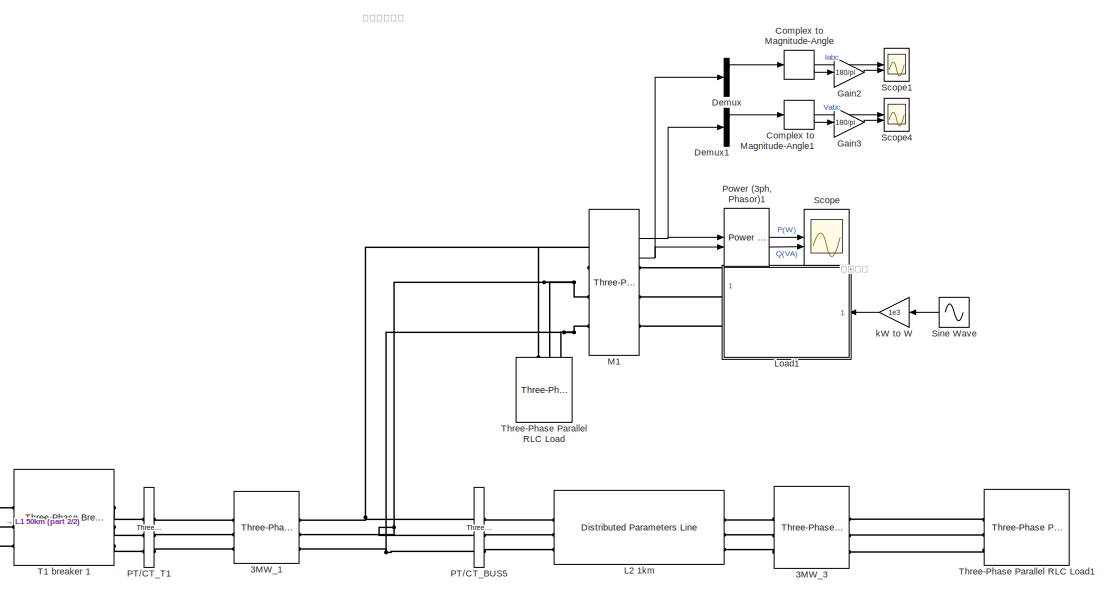
[diagram: root canvas - part 1/2, right side, full height]
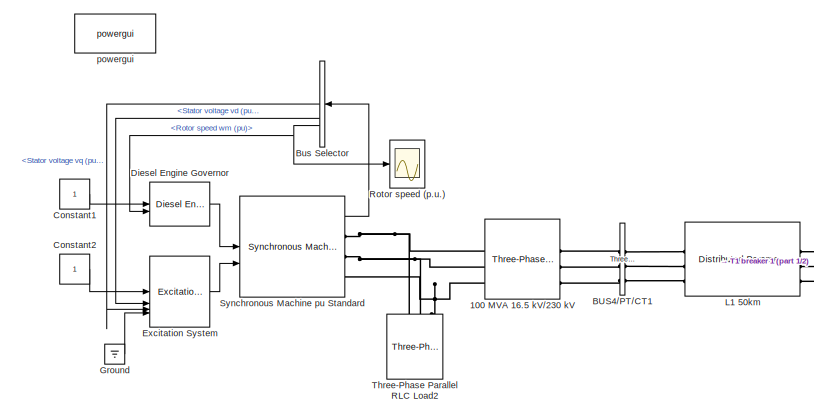
[diagram: root canvas - part 2/2, bottom left region]
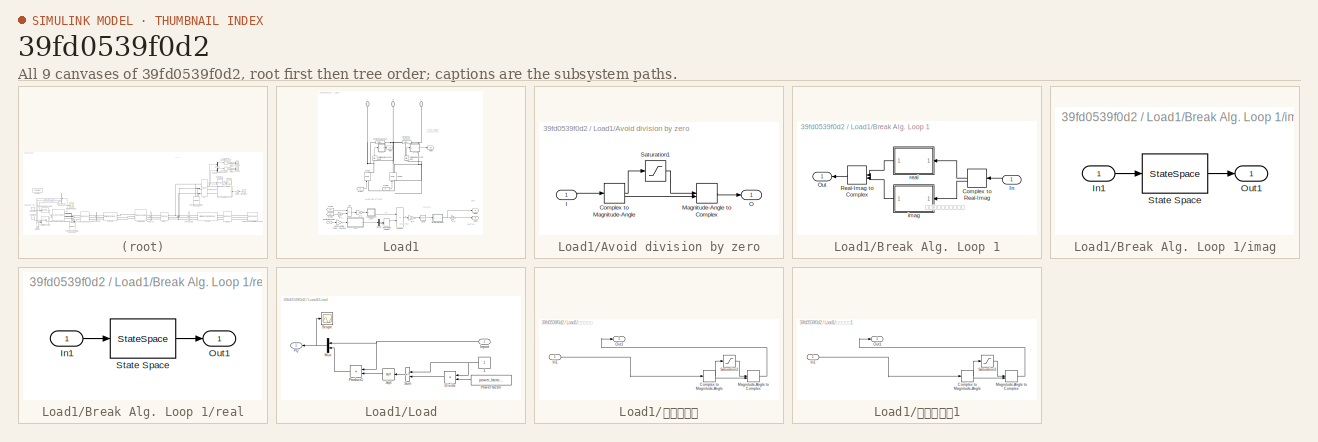
[diagram: thumbnail index - all 9 canvases of the model, root first then tree order]
MODEL slx_39fd0539f0d2
KIND model
CONFIG AbsTol = auto
CONFIG EnableMultiTasking = off
CONFIG FixedStep = auto
CONFIG InitFcn = to = 0.1;\nV_G = 16.5e3;\nV1 = 230e3;\nV2 = 10.5e3;\nV3 = 380;\n\nP_G = 10e6;\nS_T1 = 5e6;\nS_T2 = S_T1;
CONFIG MaxStep = auto
CONFIG MinStep = auto
CONFIG RelTol = 1e-3
CONFIG SampleTimeConstraint = Unconstrained
CONFIG SolverName = daessc
CONFIG StartTime = 0.0
CONFIG StopTime = 60*60*24
BLOCK [Reference] 100 MVA 16.5 kV//230 kV  REF=spsThreePhaseTransformerTwoWindingsLib/Three-Phase
Transformer
(Two Windings)
  AttributesFormatString = \n
  SourceBlock = spsThreePhaseTransformerTwoWindingsLib/Three-Phase\nTransformer\n(Two Windings)
  SourceType = Three-Phase Transformer (Two Windings)
BLOCK [Reference] 3MW_1  REF=spsThreePhaseTransformerTwoWindingsLib/Three-Phase
Transformer
(Two Windings)
  LibrarySourceBlock = sps_lib/Power Grid Elements/Three-Phase\nTransformer\n(Two Windings)
  SourceBlock = spsThreePhaseTransformerTwoWindingsLib/Three-Phase\nTransformer\n(Two Windings)
  SourceType = Three-Phase Transformer (Two Windings)
BLOCK [Reference] 3MW_3  REF=spsThreePhaseTransformerTwoWindingsLib/Three-Phase
Transformer
(Two Windings)
  LibrarySourceBlock = sps_lib/Power Grid Elements/Three-Phase\nTransformer\n(Two Windings)
  SourceBlock = spsThreePhaseTransformerTwoWindingsLib/Three-Phase\nTransformer\n(Two Windings)
  SourceType = Three-Phase Transformer (Two Windings)
BLOCK [Reference] BUS4//PT//CT1  REF=spsThreePhaseVIMeasurementLib/Three-Phase
V-I Measurement
  LibrarySourceBlock = sps_lib/Sensors and Measurements/Three-Phase\nV-I Measurement
  SourceBlock = spsThreePhaseVIMeasurementLib/Three-Phase\nV-I Measurement
  SourceType = Three-Phase VI Measurement
BLOCK [BusSelector] Bus Selector
  NameLocation = top
  OutputSignals = dq0 components.Stator voltage  vq (pu),dq0 components.Stator voltage  vd (pu),Mechanical.Rotor speed  wm  (pu)
BLOCK [ComplexToMagnitudeAngle] Complex to Magnitude-Angle
BLOCK [ComplexToMagnitudeAngle] Complex to Magnitude-Angle1
BLOCK [Constant] Constant1
BLOCK [Constant] Constant2
BLOCK [Demux] Demux
  Outputs = 3
BLOCK [Demux] Demux1
  Outputs = 3
BLOCK [Reference] Diesel Engine Governor  REF=spsDieselMotorModel/Diesel Engine Governor
  SourceBlock = spsDieselMotorModel/Diesel Engine Governor
  SourceType = Diesel Engine & Governor
BLOCK [Reference] Excitation System  REF=spsExcitationSystemLib/Excitation System
  SourceBlock = spsExcitationSystemLib/Excitation System
  SourceType = Excitation System
BLOCK [Gain] Gain2
  Gain = 180/pi
BLOCK [Gain] Gain3
  Gain = 180/pi
BLOCK [Ground] Ground
BLOCK [Reference] L1 50km  REF=spsDistributedParametersLineLib/Distributed Parameters Line
  AttributesFormatString = \n
  SourceBlock = spsDistributedParametersLineLib/Distributed Parameters Line
  SourceType = Distributed Parameters Line
BLOCK [Reference] L2 1km  REF=spsDistributedParametersLineLib/Distributed Parameters Line
  AttributesFormatString = \n
  SourceBlock = spsDistributedParametersLineLib/Distributed Parameters Line
  SourceType = Distributed Parameters Line
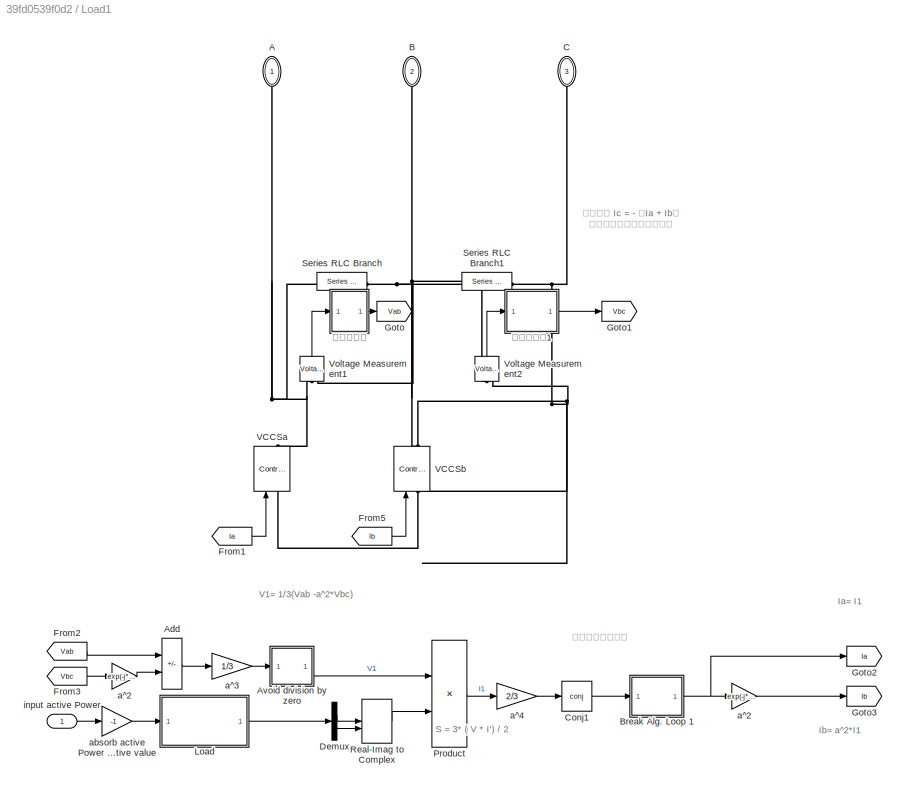
BLOCK [SubSystem] Load1
BLOCK [PMIOPort] Load1/A
  NameLocation = left
  Side = Right
  Tag = PMCPort
BLOCK [Sum] Load1/Add
  IconShape = rectangular
  Inputs = +-
BLOCK [SubSystem] Load1/Avoid division by zero
BLOCK [ComplexToMagnitudeAngle] Load1/Avoid division by zero/Complex to Magnitude-Angle
BLOCK [Inport] Load1/Avoid division by zero/I
BLOCK [MagnitudeAngleToComplex] Load1/Avoid division by zero/Magnitude-Angle to Complex
BLOCK [Outport] Load1/Avoid division by zero/O
  VectorParamsAs1DForOutWhenUnconnected = off
BLOCK [Saturate] Load1/Avoid division by zero/Saturation1
  LowerLimit = 1e-6
  UpperLimit = inf
BLOCK [PMIOPort] Load1/B
  NameLocation = right
  Port = 2
  Side = Right
  Tag = PMCPort
BLOCK [SubSystem] Load1/Break Alg. Loop 1
BLOCK [ComplexToRealImag] Load1/Break Alg. Loop 1/Complex to Real-Imag
BLOCK [Inport] Load1/Break Alg. Loop 1/In
BLOCK [Outport] Load1/Break Alg. Loop 1/Out
  VectorParamsAs1DForOutWhenUnconnected = off
BLOCK [RealImagToComplex] Load1/Break Alg. Loop 1/Real-Imag to Complex
BLOCK [SubSystem] Load1/Break Alg. Loop 1/imag
BLOCK [Inport] Load1/Break Alg. Loop 1/imag/In1
BLOCK [Outport] Load1/Break Alg. Loop 1/imag/Out1
  InitialOutput = 0
  VectorParamsAs1DForOutWhenUnconnected = off
BLOCK [StateSpace] Load1/Break Alg. Loop 1/imag/State Space
  A = A
  B = B
  C = C
  D = Dd
  InitialCondition = X0
BLOCK [SubSystem] Load1/Break Alg. Loop 1/real
BLOCK [Inport] Load1/Break Alg. Loop 1/real/In1
BLOCK [Outport] Load1/Break Alg. Loop 1/real/Out1
  InitialOutput = 0
  VectorParamsAs1DForOutWhenUnconnected = off
BLOCK [StateSpace] Load1/Break Alg. Loop 1/real/State Space
  A = A
  B = B
  C = C
  D = Dd
  InitialCondition = X0
BLOCK [PMIOPort] Load1/C
  NameLocation = left
  Port = 3
  Side = Right
  Tag = PMCPort
BLOCK [Math] Load1/Conj1
  Operator = conj
  SignedPower = on
BLOCK [Demux] Load1/Demux
  Outputs = 2
BLOCK [From] Load1/From1
  GotoTag = Ia
BLOCK [From] Load1/From2
  GotoTag = Vab
BLOCK [From] Load1/From3
  GotoTag = Vbc
BLOCK [From] Load1/From5
  GotoTag = Ib
BLOCK [Goto] Load1/Goto
  GotoTag = Vab
BLOCK [Goto] Load1/Goto1
  GotoTag = Vbc
BLOCK [Goto] Load1/Goto2
  GotoTag = Ia
BLOCK [Goto] Load1/Goto3
  GotoTag = Ib
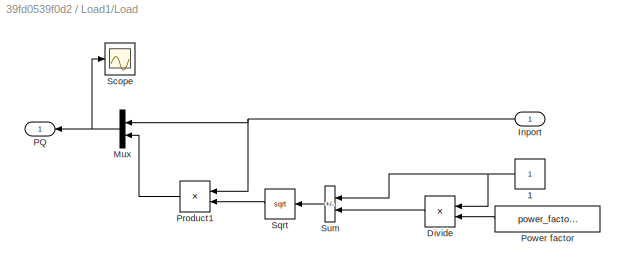
BLOCK [SubSystem] Load1/Load
BLOCK [Constant] Load1/Load/1
  NameLocation = top
BLOCK [Product] Load1/Load/Divide
  Inputs = */
BLOCK [Inport] Load1/Load/Inport
  NameLocation = top
BLOCK [Mux] Load1/Load/Mux
  DisplayOption = bar
  Inputs = 2
  NameLocation = top
BLOCK [Outport] Load1/Load/PQ
  VectorParamsAs1DForOutWhenUnconnected = off
BLOCK [Constant] Load1/Load/Power factor
  Value = power_factor^2
BLOCK [Product] Load1/Load/Product1
  NameLocation = top
BLOCK [Scope] Load1/Load/Scope
  Floating = off
  NumInputPorts = 1
  ScopeSpecificationString = Simulink.scopes.TimeScopeBlockCfg('CurrentConfiguration', extmgr.ConfigurationSet(extmgr.Configuration('Core','General UI',true),extmgr.Configuration('Core','Source UI',true),extmgr.Configuration('Sources','WiredSimulink',true,'DataLoggingVariableName','ScopeData4','DataLoggingSaveFormat','StructureWithTime','DataLoggingDecimation','20','DataLoggingDecimateData',true),extmgr.Configuration('Visuals...<+1746ch>
BLOCK [Sqrt] Load1/Load/Sqrt
  NameLocation = top
BLOCK [Sum] Load1/Load/Sum
  IconShape = rectangular
  Inputs = -+
  NameLocation = top
BLOCK [Product] Load1/Product
  InputSameDT = on
  Inputs = /*
  OutDataTypeStr = Inherit: Same as first input
  SaturateOnIntegerOverflow = on
BLOCK [RealImagToComplex] Load1/Real-Imag to Complex
BLOCK [Reference] Load1/Series RLC Branch  REF=spsSeriesRLCBranchLib/Series RLC Branch
  SourceBlock = spsSeriesRLCBranchLib/Series RLC Branch
  SourceType = Series RLC Branch
BLOCK [Reference] Load1/Series RLC Branch1  REF=spsSeriesRLCBranchLib/Series RLC Branch
  SourceBlock = spsSeriesRLCBranchLib/Series RLC Branch
  SourceType = Series RLC Branch
BLOCK [Reference] Load1/VCCSa  REF=spsControlledCurrentSourceLib/Controlled Current Source
  NameLocation = right
  SourceBlock = spsControlledCurrentSourceLib/Controlled Current Source
  SourceType = Controlled Current Source
BLOCK [Reference] Load1/VCCSb  REF=spsControlledCurrentSourceLib/Controlled Current Source
  NameLocation = right
  SourceBlock = spsControlledCurrentSourceLib/Controlled Current Source
  SourceType = Controlled Current Source
BLOCK [Reference] Load1/Voltage Measurement1  REF=spsVoltageMeasurementLib/Voltage Measurement
  NameLocation = left
  SourceBlock = spsVoltageMeasurementLib/Voltage Measurement
  SourceType = Voltage Measurement
BLOCK [Reference] Load1/Voltage Measurement2  REF=spsVoltageMeasurementLib/Voltage Measurement
  NameLocation = left
  SourceBlock = spsVoltageMeasurementLib/Voltage Measurement
  SourceType = Voltage Measurement
BLOCK [Gain] Load1/a^2
  Gain = exp(-j*2*pi/3)
  OutDataTypeStr = Inherit: Same as input
  ParamDataTypeStr = Inherit: Same as input
  SaturateOnIntegerOverflow = on
BLOCK [Gain] Load1/a^2 
  Gain = exp(-j*2*pi/3)
  OutDataTypeStr = Inherit: Same as input
  ParamDataTypeStr = Inherit: Same as input
  SaturateOnIntegerOverflow = on
BLOCK [Gain] Load1/a^3
  Gain = 1/3
  OutDataTypeStr = Inherit: Same as input
  ParamDataTypeStr = Inherit: Same as input
  SaturateOnIntegerOverflow = on
BLOCK [Gain] Load1/a^4
  Gain = 2/3
  OutDataTypeStr = Inherit: Same as input
  ParamDataTypeStr = Inherit: Same as input
  SaturateOnIntegerOverflow = on
BLOCK [Gain] Load1/absorb active Power gain has a nagetive value
  Gain = -1
BLOCK [Inport] Load1/input active Power
BLOCK [SubSystem] Load1/电压限幅器
BLOCK [ComplexToMagnitudeAngle] Load1/电压限幅器/Complex to Magnitude-Angle
BLOCK [Inport] Load1/电压限幅器/In1
BLOCK [MagnitudeAngleToComplex] Load1/电压限幅器/Magnitude-Angle to Complex
BLOCK [Outport] Load1/电压限幅器/Out1
BLOCK [Saturate] Load1/电压限幅器/Saturation2
  LowerLimit = -50e3
  UpperLimit = 50e3
BLOCK [SubSystem] Load1/电压限幅器1
BLOCK [ComplexToMagnitudeAngle] Load1/电压限幅器1/Complex to Magnitude-Angle
BLOCK [Inport] Load1/电压限幅器1/In1
BLOCK [MagnitudeAngleToComplex] Load1/电压限幅器1/Magnitude-Angle to Complex
BLOCK [Outport] Load1/电压限幅器1/Out1
BLOCK [Saturate] Load1/电压限幅器1/Saturation2
  LowerLimit = -50e3
  UpperLimit = 50e3
BLOCK [Reference] M1  REF=spsThreePhaseVIMeasurementLib/Three-Phase
V-I Measurement
  NameLocation = top
  SourceBlock = spsThreePhaseVIMeasurementLib/Three-Phase\nV-I Measurement
  SourceType = Three-Phase VI Measurement
BLOCK [Reference] PT//CT_BUS5  REF=spsThreePhaseVIMeasurementLib/Three-Phase
V-I Measurement
  NameLocation = top
  SourceBlock = spsThreePhaseVIMeasurementLib/Three-Phase\nV-I Measurement
  SourceType = Three-Phase VI Measurement
BLOCK [Reference] PT//CT_T1  REF=spsThreePhaseVIMeasurementLib/Three-Phase
V-I Measurement
  NameLocation = top
  SourceBlock = spsThreePhaseVIMeasurementLib/Three-Phase\nV-I Measurement
  SourceType = Three-Phase VI Measurement
BLOCK [Reference] Power (3ph, Phasor)1  REF=spsPower3phPhasorLib/Power
(3ph, Phasor)
  SourceBlock = spsPower3phPhasorLib/Power\n(3ph, Phasor)
  SourceType = Power (3ph, Phasor)
BLOCK [Scope] Rotor speed (p.u.)
  Floating = off
  NumInputPorts = 1
  ScopeSpecificationString = Simulink.scopes.TimeScopeBlockCfg('CurrentConfiguration', extmgr.ConfigurationSet(extmgr.Configuration('Core','General UI',true),extmgr.Configuration('Core','Source UI',true),extmgr.Configuration('Sources','WiredSimulink',true,'DataLogging',true,'DataLoggingVariableName','ScopeData1','DataLoggingSaveFormat','Array','DataLoggingDecimation','1','DataLoggingDecimateData',true),extmgr.Configuration('V...<+1765ch>
BLOCK [Scope] Scope
  Floating = off
  NumInputPorts = 2
  ScopeSpecificationString = Simulink.scopes.TimeScopeBlockCfg('CurrentConfiguration', extmgr.ConfigurationSet(extmgr.Configuration('Core','General UI',true),extmgr.Configuration('Core','Source UI',true),extmgr.Configuration('Sources','WiredSimulink',true,'DataLoggingVariableName','ScopeData2'),extmgr.Configuration('Visuals','Time Domain',true,'SerializedDisplays',{struct('MinYLimReal','-5591.96238','MaxYLimReal','6296.52307'...<+2108ch>
BLOCK [Scope] Scope1
  Floating = off
  NumInputPorts = 2
  ScopeSpecificationString = Simulink.scopes.TimeScopeBlockCfg('CurrentConfiguration', extmgr.ConfigurationSet(extmgr.Configuration('Core','General UI',true),extmgr.Configuration('Core','Source UI',true),extmgr.Configuration('Sources','WiredSimulink',true,'DataLoggingVariableName','ScopeData3'),extmgr.Configuration('Visuals','Time Domain',true,'SerializedDisplays',{struct('MinYLimReal','-55.96363','MaxYLimReal','503.68251','Y...<+2106ch>
BLOCK [Scope] Scope4
  Floating = off
  NumInputPorts = 2
  ScopeSpecificationString = Simulink.scopes.TimeScopeBlockCfg('CurrentConfiguration', extmgr.ConfigurationSet(extmgr.Configuration('Core','General UI',true),extmgr.Configuration('Core','Source UI',true),extmgr.Configuration('Sources','WiredSimulink',true,'DataLoggingVariableName','ScopeData4'),extmgr.Configuration('Visuals','Time Domain',true,'SerializedDisplays',{struct('MinYLimReal','-620.04933','MaxYLimReal','10223.62444'...<+2112ch>
BLOCK [Sin] Sine Wave
  Amplitude = 5
  Frequency = 3600
  NameLocation = top
  SampleTime = 60
  SineType = Sample based
BLOCK [Reference] Synchronous Machine pu Standard  REF=spsSynchronousMachinepuStandardLib/Synchronous Machine
pu Standard
  SourceBlock = spsSynchronousMachinepuStandardLib/Synchronous Machine\npu Standard
  SourceType = Synchronous Machine
BLOCK [Reference] T1 breaker 1  REF=spsThreePhaseBreakerLib/Three-Phase Breaker
  LibrarySourceBlock = sps_lib/Power Grid Elements/Three-Phase Breaker
  SourceBlock = spsThreePhaseBreakerLib/Three-Phase Breaker
  SourceType = Three-Phase Breaker
BLOCK [Reference] Three-Phase Parallel RLC Load  REF=spsThreePhaseParallelRLCLoadLib/Three-Phase
Parallel RLC Load
  AttributesFormatString = \n
  LibrarySourceBlock = sps_lib/Passives/Three-Phase\nParallel RLC Load
  SourceBlock = spsThreePhaseParallelRLCLoadLib/Three-Phase\nParallel RLC Load
  SourceType = Three-Phase Parallel RLC Load
BLOCK [Reference] Three-Phase Parallel RLC Load1  REF=spsThreePhaseParallelRLCLoadLib/Three-Phase
Parallel RLC Load
  AttributesFormatString = \n
  LibrarySourceBlock = sps_lib/Passives/Three-Phase\nParallel RLC Load
  NameLocation = right
  SourceBlock = spsThreePhaseParallelRLCLoadLib/Three-Phase\nParallel RLC Load
  SourceType = Three-Phase Parallel RLC Load
BLOCK [Reference] Three-Phase Parallel RLC Load2  REF=spsThreePhaseParallelRLCLoadLib/Three-Phase
Parallel RLC Load
  AttributesFormatString = \n
  NameLocation = left
  SourceBlock = spsThreePhaseParallelRLCLoadLib/Three-Phase\nParallel RLC Load
  SourceType = Three-Phase Parallel RLC Load
BLOCK [Gain] kW to W
  Gain = 1e3
  NameLocation = top
BLOCK [Reference] powergui  REF=sps_lib/powergui
  Priority = 1
  SourceBlock = sps_lib/powergui
  SourceType = PSB option menu block
ANNOTATION (root): 功率指令
ANNOTATION (root): 可控功率负荷
ANNOTATION Load1: Ia= I1
ANNOTATION Load1: Ib= a^2*I1
ANNOTATION Load1: S = 3* ( V * I') / 2
ANNOTATION Load1: V1= 1/3(Vab -a^2*Vbc)
ANNOTATION Load1: 三相三线 Ic = - （Ia + Ib） 注：三相四线不可用该模型
ANNOTATION Load1: 电流动态特性模拟
ANNOTATION Load1/Break Alg. Loop 1: 模拟电网电流动态行为
LINE Bus Selector:1 -> Excitation System:3
LINE Bus Selector:2 -> Excitation System:2
NET Bus Selector:3 -> Diesel Engine Governor:2, Rotor speed (p.u.):1
LINE Complex to Magnitude-Angle1:1 -> Scope4:1
LINE Complex to Magnitude-Angle1:2 -> Gain3:1
LINE Complex to Magnitude-Angle:1 -> Scope1:1
LINE Complex to Magnitude-Angle:2 -> Gain2:1
LINE Constant1:1 -> Diesel Engine Governor:1
LINE Constant2:1 -> Excitation System:1
LINE Demux1:1 -> Complex to Magnitude-Angle1:1
LINE Demux:1 -> Complex to Magnitude-Angle:1
LINE Diesel Engine Governor:1 -> Synchronous Machine pu Standard:1
LINE Excitation System:1 -> Synchronous Machine pu Standard:2
LINE Gain2:1 -> Scope1:2
LINE Gain3:1 -> Scope4:2
LINE Ground:1 -> Excitation System:4
LINE Load1/Add:1 -> Load1/a^3:1
LINE Load1/Avoid division by zero/Complex to Magnitude-Angle:1 -> Load1/Avoid division by zero/Saturation1:1
LINE Load1/Avoid division by zero/Complex to Magnitude-Angle:2 -> Load1/Avoid division by zero/Magnitude-Angle to Complex:2
LINE Load1/Avoid division by zero/I:1 -> Load1/Avoid division by zero/Complex to Magnitude-Angle:1
LINE Load1/Avoid division by zero/Magnitude-Angle to Complex:1 -> Load1/Avoid division by zero/O:1
LINE Load1/Avoid division by zero/Saturation1:1 -> Load1/Avoid division by zero/Magnitude-Angle to Complex:1
LINE Load1/Avoid division by zero:1 -> Load1/Product:1
LINE Load1/Break Alg. Loop 1/Complex to Real-Imag:1 -> Load1/Break Alg. Loop 1/real:1
LINE Load1/Break Alg. Loop 1/Complex to Real-Imag:2 -> Load1/Break Alg. Loop 1/imag:1
LINE Load1/Break Alg. Loop 1/In:1 -> Load1/Break Alg. Loop 1/Complex to Real-Imag:1
LINE Load1/Break Alg. Loop 1/Real-Imag to Complex:1 -> Load1/Break Alg. Loop 1/Out:1
LINE Load1/Break Alg. Loop 1/imag/In1:1 -> Load1/Break Alg. Loop 1/imag/State Space:1
LINE Load1/Break Alg. Loop 1/imag/State Space:1 -> Load1/Break Alg. Loop 1/imag/Out1:1
LINE Load1/Break Alg. Loop 1/imag:1 -> Load1/Break Alg. Loop 1/Real-Imag to Complex:2
LINE Load1/Break Alg. Loop 1/real/In1:1 -> Load1/Break Alg. Loop 1/real/State Space:1
LINE Load1/Break Alg. Loop 1/real/State Space:1 -> Load1/Break Alg. Loop 1/real/Out1:1
LINE Load1/Break Alg. Loop 1/real:1 -> Load1/Break Alg. Loop 1/Real-Imag to Complex:1
NET Load1/Break Alg. Loop 1:1 -> Load1/Goto2:1, Load1/a^2:1
LINE Load1/Conj1:1 -> Load1/Break Alg. Loop 1:1
LINE Load1/Demux:1 -> Load1/Real-Imag to Complex:1
LINE Load1/Demux:2 -> Load1/Real-Imag to Complex:2
LINE Load1/From1:1 -> Load1/VCCSa:1
LINE Load1/From2:1 -> Load1/Add:1
LINE Load1/From3:1 -> Load1/a^2 :1
LINE Load1/From5:1 -> Load1/VCCSb:1
NET Load1/Load/1:1 -> Load1/Load/Divide:1, Load1/Load/Sum:1
LINE Load1/Load/Divide:1 -> Load1/Load/Sum:2
NET Load1/Load/Inport:1 -> Load1/Load/Mux:1, Load1/Load/Product1:1
NET Load1/Load/Mux:1 -> Load1/Load/PQ:1, Load1/Load/Scope:1
LINE Load1/Load/Power factor:1 -> Load1/Load/Divide:2
LINE Load1/Load/Product1:1 -> Load1/Load/Mux:2
LINE Load1/Load/Sqrt:1 -> Load1/Load/Product1:2
LINE Load1/Load/Sum:1 -> Load1/Load/Sqrt:1
LINE Load1/Load:1 -> Load1/Demux:1
LINE Load1/Product:1 -> Load1/a^4:1
LINE Load1/Real-Imag to Complex:1 -> Load1/Product:2
LINE Load1/Voltage Measurement1:1 -> Load1/电压限幅器:1
LINE Load1/Voltage Measurement2:1 -> Load1/电压限幅器1:1
LINE Load1/a^2 :1 -> Load1/Add:2
LINE Load1/a^2:1 -> Load1/Goto3:1
LINE Load1/a^3:1 -> Load1/Avoid division by zero:1
LINE Load1/a^4:1 -> Load1/Conj1:1
LINE Load1/absorb active Power gain has a nagetive value:1 -> Load1/Load:1
LINE Load1/input active Power:1 -> Load1/absorb active Power gain has a nagetive value:1
LINE Load1/电压限幅器/Complex to Magnitude-Angle:1 -> Load1/电压限幅器/Saturation2:1
LINE Load1/电压限幅器/Complex to Magnitude-Angle:2 -> Load1/电压限幅器/Magnitude-Angle to Complex:2
LINE Load1/电压限幅器/In1:1 -> Load1/电压限幅器/Complex to Magnitude-Angle:1
LINE Load1/电压限幅器/Magnitude-Angle to Complex:1 -> Load1/电压限幅器/Out1:1
LINE Load1/电压限幅器/Saturation2:1 -> Load1/电压限幅器/Magnitude-Angle to Complex:1
LINE Load1/电压限幅器1/Complex to Magnitude-Angle:1 -> Load1/电压限幅器1/Saturation2:1
LINE Load1/电压限幅器1/Complex to Magnitude-Angle:2 -> Load1/电压限幅器1/Magnitude-Angle to Complex:2
LINE Load1/电压限幅器1/In1:1 -> Load1/电压限幅器1/Complex to Magnitude-Angle:1
LINE Load1/电压限幅器1/Magnitude-Angle to Complex:1 -> Load1/电压限幅器1/Out1:1
LINE Load1/电压限幅器1/Saturation2:1 -> Load1/电压限幅器1/Magnitude-Angle to Complex:1
LINE Load1/电压限幅器1:1 -> Load1/Goto1:1
LINE Load1/电压限幅器:1 -> Load1/Goto:1
NET M1:1 -> Demux1:1, Power (3ph, Phasor)1:1
NET M1:2 -> Demux:1, Power (3ph, Phasor)1:2
LINE Power (3ph, Phasor)1:1 -> Scope:1
LINE Power (3ph, Phasor)1:2 -> Scope:2
LINE Sine Wave:1 -> kW to W:1
LINE Synchronous Machine pu Standard:1 -> Bus Selector:1
LINE kW to W:1 -> Load1:1
PNET net1: 100 MVA 16.5 kV//230 kV:LConn1 -- Synchronous Machine pu Standard:RConn1 -- Three-Phase Parallel RLC Load2:LConn1
PNET net2: 100 MVA 16.5 kV//230 kV:LConn2 -- Synchronous Machine pu Standard:RConn2 -- Three-Phase Parallel RLC Load2:LConn2
PNET net3: 100 MVA 16.5 kV//230 kV:LConn3 -- Synchronous Machine pu Standard:RConn3 -- Three-Phase Parallel RLC Load2:LConn3
PLINE 100 MVA 16.5 kV//230 kV:RConn1 -- BUS4//PT//CT1:LConn1
PLINE 100 MVA 16.5 kV//230 kV:RConn2 -- BUS4//PT//CT1:LConn2
PLINE 100 MVA 16.5 kV//230 kV:RConn3 -- BUS4//PT//CT1:LConn3
PLINE 3MW_1:LConn1 -- PT//CT_T1:RConn1
PLINE 3MW_1:LConn2 -- PT//CT_T1:RConn2
PLINE 3MW_1:LConn3 -- PT//CT_T1:RConn3
PNET net4: 3MW_1:RConn1 -- M1:LConn1 -- PT//CT_BUS5:LConn1 -- Three-Phase Parallel RLC Load:LConn1
PNET net5: 3MW_1:RConn2 -- M1:LConn2 -- PT//CT_BUS5:LConn2 -- Three-Phase Parallel RLC Load:LConn2
PNET net6: 3MW_1:RConn3 -- M1:LConn3 -- PT//CT_BUS5:LConn3 -- Three-Phase Parallel RLC Load:LConn3
PLINE 3MW_3:LConn1 -- L2 1km:RConn1
PLINE 3MW_3:LConn2 -- L2 1km:RConn2
PLINE 3MW_3:LConn3 -- L2 1km:RConn3
PLINE 3MW_3:RConn1 -- Three-Phase Parallel RLC Load1:LConn1
PLINE 3MW_3:RConn2 -- Three-Phase Parallel RLC Load1:LConn2
PLINE 3MW_3:RConn3 -- Three-Phase Parallel RLC Load1:LConn3
PLINE BUS4//PT//CT1:RConn1 -- L1 50km:LConn1
PLINE BUS4//PT//CT1:RConn2 -- L1 50km:LConn2
PLINE BUS4//PT//CT1:RConn3 -- L1 50km:LConn3
PLINE L1 50km:RConn1 -- T1 breaker 1:LConn1
PLINE L1 50km:RConn2 -- T1 breaker 1:LConn2
PLINE L1 50km:RConn3 -- T1 breaker 1:LConn3
PLINE L2 1km:LConn1 -- PT//CT_BUS5:RConn1
PLINE L2 1km:LConn2 -- PT//CT_BUS5:RConn2
PLINE L2 1km:LConn3 -- PT//CT_BUS5:RConn3
PNET net7: Load1/A:RConn1 -- Load1/Series RLC Branch:LConn1 -- Load1/VCCSa:RConn1 -- Load1/Voltage Measurement1:LConn1
PNET net8: Load1/B:RConn1 -- Load1/Series RLC Branch1:LConn1 -- Load1/Series RLC Branch:RConn1 -- Load1/VCCSb:RConn1 -- Load1/Voltage Measurement1:LConn2 -- Load1/Voltage Measurement2:LConn1
PNET net9: Load1/C:RConn1 -- Load1/Series RLC Branch1:RConn1 -- Load1/VCCSa:LConn1 -- Load1/VCCSb:LConn1 -- Load1/Voltage Measurement2:LConn2
PLINE Load1:RConn1 -- M1:RConn1
PLINE Load1:RConn2 -- M1:RConn2
PLINE Load1:RConn3 -- M1:RConn3
PLINE PT//CT_T1:LConn1 -- T1 breaker 1:RConn1
PLINE PT//CT_T1:LConn2 -- T1 breaker 1:RConn2
PLINE PT//CT_T1:LConn3 -- T1 breaker 1:RConn3
note: NET lines group one-source signal fan-out (src -> all destinations, sorted); 1:1 wires keep LINE; PNET lines group multi-terminal physical nets as a canonical sorted terminal list (undirected conserving connections); 2-terminal nets keep the pairwise PLINE form
